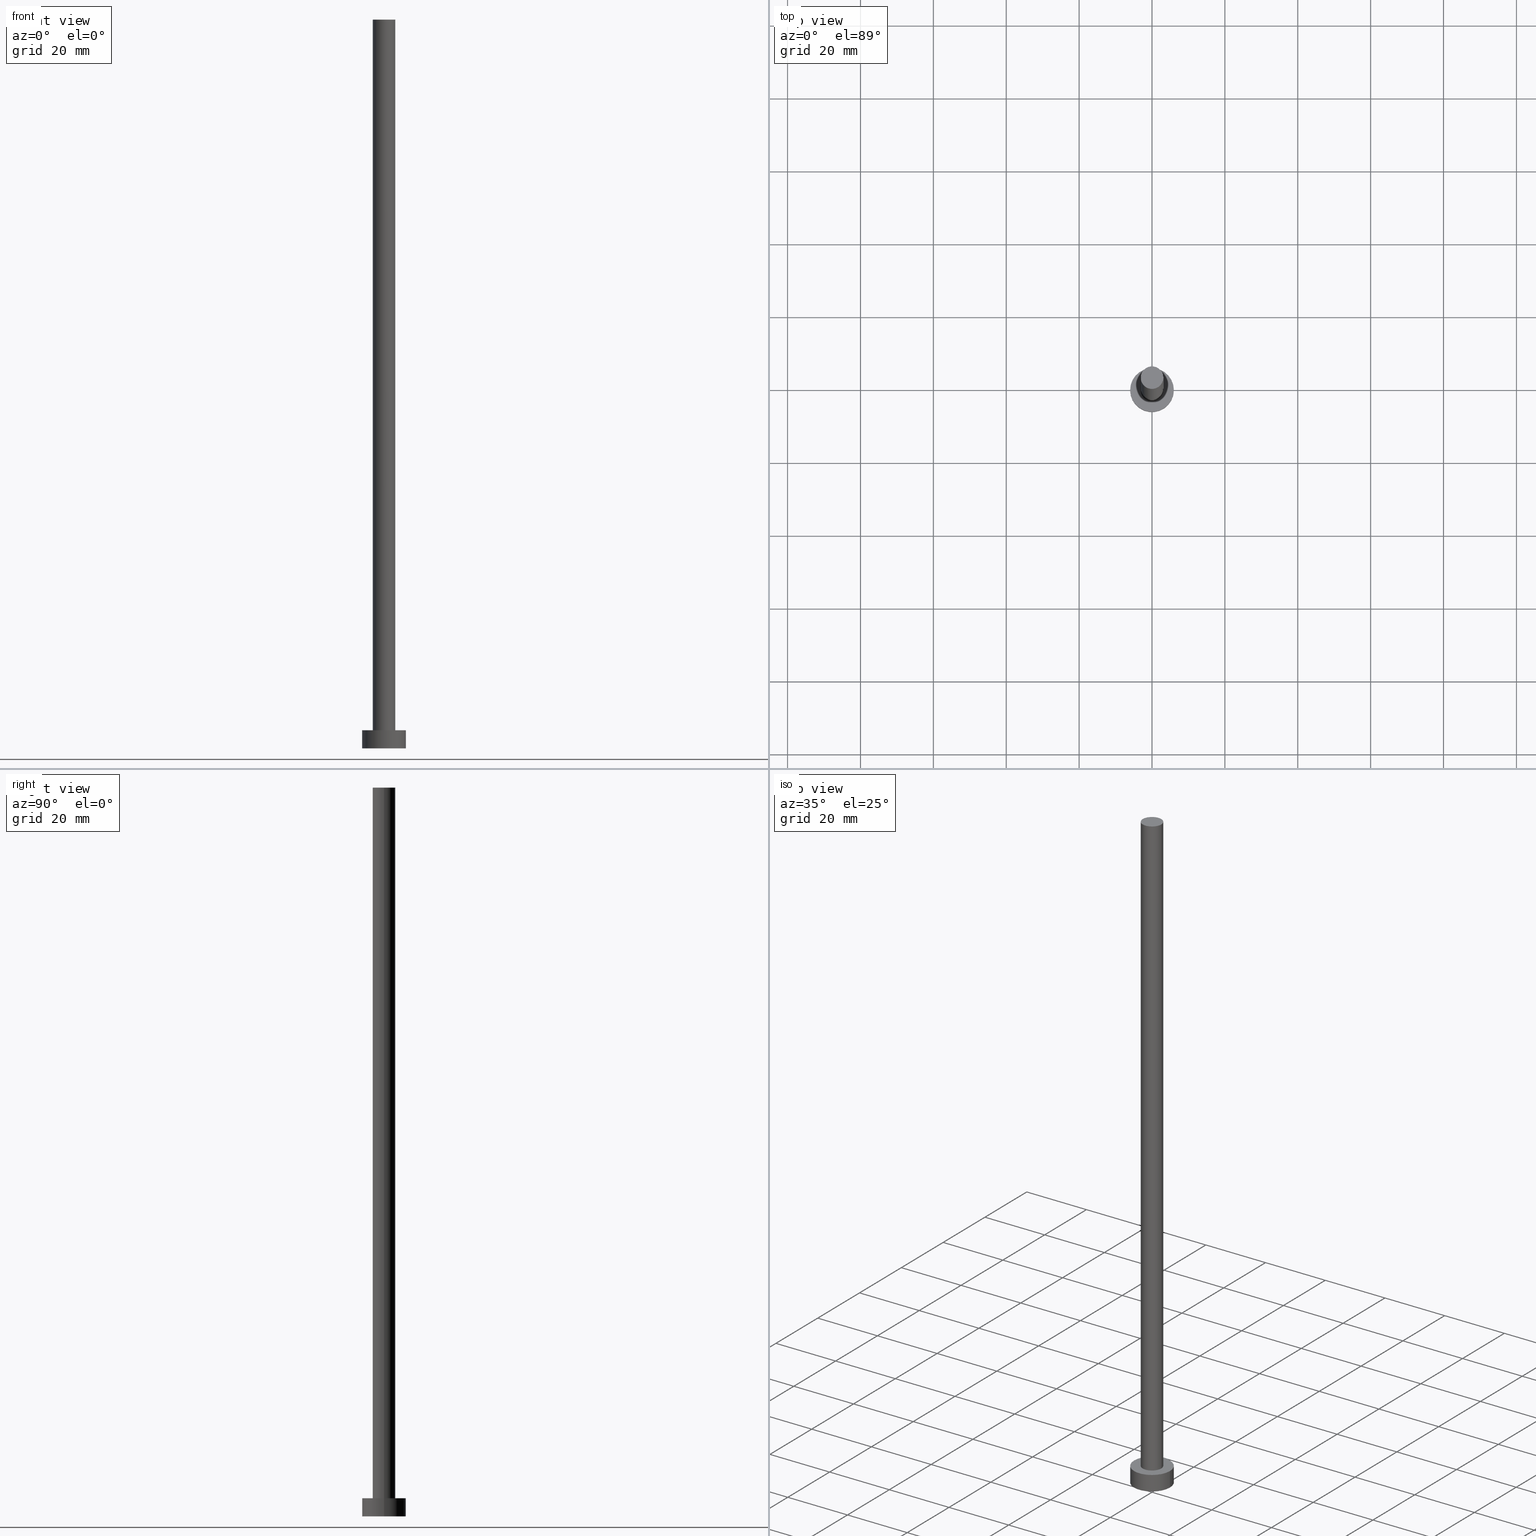
[diagram: canonical four-view strip — front | top / right | iso, engineering-drawing reading convention]
A machine part, canonical four-view strip (front | top / right | iso — engineering-drawing reading convention). The complete STEP part file that produces these views, byte-faithful:
ISO-10303-21;
HEADER;
FILE_DESCRIPTION (( 'STEP AP203' ),
    '1' );
FILE_NAME ('9dff.STEP',
    '2023-02-13T12:35:56',
    ( '' ),
    ( '' ),
    'SwSTEP 2.0',
    'SolidWorks 2019',
    '' );
FILE_SCHEMA (( 'CONFIG_CONTROL_DESIGN' ));
ENDSEC;

DATA;
#1 = ORIENTED_EDGE ( 'NONE', *, *, #210, .F. ) ;
#2 = AXIS2_PLACEMENT_3D ( 'NONE', #27, #22, #221 ) ;
#3 = CALENDAR_DATE ( 2023, 13, 2 ) ;
#4 = ADVANCED_FACE ( 'NONE', ( #180 ), #200, .F. ) ;
#5 = CARTESIAN_POINT ( 'NONE',  ( 0.000000000000000000, 0.000000000000000000, 0.000000000000000000 ) ) ;
#6 = PLANE ( 'NONE',  #235 ) ;
#7 = PRODUCT_DEFINITION_FORMATION_WITH_SPECIFIED_SOURCE ( 'LIBOVOLN�', '', #110, .NOT_KNOWN. ) ;
#8 = CC_DESIGN_PERSON_AND_ORGANIZATION_ASSIGNMENT ( #43, #39, ( #7 ) ) ;
#9 = DIRECTION ( 'NONE',  ( -1.000000000000000000, 0.000000000000000000, 0.000000000000000000 ) ) ;
#10 = SHAPE_DEFINITION_REPRESENTATION ( #72, #222 ) ;
#11 = DIRECTION ( 'NONE',  ( 1.000000000000000000, 0.000000000000000000, 0.000000000000000000 ) ) ;
#12 = AXIS2_PLACEMENT_3D ( 'NONE', #131, #108, #192 ) ;
#13 = LOCAL_TIME ( 13, 35, 56.00000000000000000, #36 ) ;
#14 = FACE_OUTER_BOUND ( 'NONE', #164, .T. ) ;
#15 = PERSON_AND_ORGANIZATION_ROLE ( 'design_owner' ) ;
#16 = DIRECTION ( 'NONE',  ( 1.000000000000000000, 0.000000000000000000, 0.000000000000000000 ) ) ;
#17 = ADVANCED_FACE ( 'NONE', ( #83, #66 ), #26, .T. ) ;
#18 =( LENGTH_UNIT ( ) NAMED_UNIT ( * ) SI_UNIT ( .MILLI., .METRE. ) );
#19 = ORIENTED_EDGE ( 'NONE', *, *, #176, .T. ) ;
#20 =( GEOMETRIC_REPRESENTATION_CONTEXT ( 3 ) GLOBAL_UNCERTAINTY_ASSIGNED_CONTEXT ( ( #132 ) ) GLOBAL_UNIT_ASSIGNED_CONTEXT ( ( #18, #75, #212 ) ) REPRESENTATION_CONTEXT ( 'NONE', 'WORKASPACE' ) );
#21 = ORIENTED_EDGE ( 'NONE', *, *, #255, .F. ) ;
#22 = DIRECTION ( 'NONE',  ( 0.000000000000000000, 0.000000000000000000, 1.000000000000000000 ) ) ;
#23 = ADVANCED_FACE ( 'NONE', ( #63 ), #186, .T. ) ;
#24 = CALENDAR_DATE ( 2023, 13, 2 ) ;
#25 = CARTESIAN_POINT ( 'NONE',  ( 3.100000000000000089, 3.796405077356794918E-16, 200.0000000000000000 ) ) ;
#26 = PLANE ( 'NONE',  #250 ) ;
#27 = CARTESIAN_POINT ( 'NONE',  ( 0.000000000000000000, 0.000000000000000000, 0.000000000000000000 ) ) ;
#28 = ADVANCED_FACE ( 'NONE', ( #206 ), #65, .T. ) ;
#29 = AXIS2_PLACEMENT_3D ( 'NONE', #229, #156, #35 ) ;
#30 = DIRECTION ( 'NONE',  ( 1.000000000000000000, 0.000000000000000000, 0.000000000000000000 ) ) ;
#31 = EDGE_LOOP ( 'NONE', ( #254, #40, #214, #1 ) ) ;
#32 = EDGE_CURVE ( 'NONE', #149, #56, #161, .T. ) ;
#33 = DIRECTION ( 'NONE',  ( -0.000000000000000000, -0.000000000000000000, -1.000000000000000000 ) ) ;
#34 = AXIS2_PLACEMENT_3D ( 'NONE', #84, #150, #107 ) ;
#35 = DIRECTION ( 'NONE',  ( 1.000000000000000000, 0.000000000000000000, 0.000000000000000000 ) ) ;
#36 = COORDINATED_UNIVERSAL_TIME_OFFSET ( 1, 0, .AHEAD. ) ;
#37 = VERTEX_POINT ( 'NONE', #67 ) ;
#38 = CC_DESIGN_DATE_AND_TIME_ASSIGNMENT ( #102, #69, ( #82 ) ) ;
#39 = PERSON_AND_ORGANIZATION_ROLE ( 'design_supplier' ) ;
#40 = ORIENTED_EDGE ( 'NONE', *, *, #255, .T. ) ;
#41 = CALENDAR_DATE ( 2023, 13, 2 ) ;
#42 = ADVANCED_FACE ( 'NONE', ( #169 ), #220, .T. ) ;
#43 = PERSON_AND_ORGANIZATION ( #79, #123 ) ;
#44 = CIRCLE ( 'NONE', #2, 6.000000000000000888 ) ;
#45 = COORDINATED_UNIVERSAL_TIME_OFFSET ( 1, 0, .AHEAD. ) ;
#46 = DIRECTION ( 'NONE',  ( 0.000000000000000000, 0.000000000000000000, 1.000000000000000000 ) ) ;
#47 = CARTESIAN_POINT ( 'NONE',  ( -3.100000000000000089, 0.000000000000000000, 5.000000000000000000 ) ) ;
#48 = CARTESIAN_POINT ( 'NONE',  ( 0.000000000000000000, 0.000000000000000000, 200.0000000000000000 ) ) ;
#49 = DIRECTION ( 'NONE',  ( -1.000000000000000000, 0.000000000000000000, 0.000000000000000000 ) ) ;
#50 = CYLINDRICAL_SURFACE ( 'NONE', #12, 6.000000000000000888 ) ;
#51 = AXIS2_PLACEMENT_3D ( 'NONE', #153, #207, #11 ) ;
#52 = VECTOR ( 'NONE', #33, 1000.000000000000000 ) ;
#53 = APPROVAL ( #145, 'NEUR�EN�' ) ;
#54 = CARTESIAN_POINT ( 'NONE',  ( -3.100000000000000089, 0.000000000000000000, 200.0000000000000000 ) ) ;
#55 = VERTEX_POINT ( 'NONE', #130 ) ;
#56 = VERTEX_POINT ( 'NONE', #47 ) ;
#57 = CLOSED_SHELL ( 'NONE', ( #42, #23, #81, #17, #4, #28, #92 ) ) ;
#58 = LOCAL_TIME ( 13, 35, 56.00000000000000000, #45 ) ;
#59 = CARTESIAN_POINT ( 'NONE',  ( 6.000000000000000888, 7.347880794884120722E-16, 5.000000000000000000 ) ) ;
#60 = ORIENTED_EDGE ( 'NONE', *, *, #32, .T. ) ;
#61 = PERSON_AND_ORGANIZATION ( #79, #123 ) ;
#62 = APPROVAL ( #106, 'NEUR�EN�' ) ;
#63 = FACE_OUTER_BOUND ( 'NONE', #31, .T. ) ;
#64 = AXIS2_PLACEMENT_3D ( 'NONE', #232, #93, #16 ) ;
#65 = CYLINDRICAL_SURFACE ( 'NONE', #190, 3.100000000000000089 ) ;
#66 = FACE_OUTER_BOUND ( 'NONE', #80, .T. ) ;
#67 = CARTESIAN_POINT ( 'NONE',  ( -6.000000000000000888, 0.000000000000000000, 5.000000000000000000 ) ) ;
#68 = PRODUCT_DEFINITION ( 'NEZN�M�', '', #7, #112 ) ;
#69 = DATE_TIME_ROLE ( 'classification_date' ) ;
#70 = DIRECTION ( 'NONE',  ( -0.000000000000000000, -0.000000000000000000, -1.000000000000000000 ) ) ;
#71 = CC_DESIGN_PERSON_AND_ORGANIZATION_ASSIGNMENT ( #158, #15, ( #110 ) ) ;
#72 = PRODUCT_DEFINITION_SHAPE ( 'NONE', 'NONE',  #68 ) ;
#73 = APPROVAL_ROLE ( '' ) ;
#74 = ORIENTED_EDGE ( 'NONE', *, *, #218, .T. ) ;
#75 =( NAMED_UNIT ( * ) PLANE_ANGLE_UNIT ( ) SI_UNIT ( $, .RADIAN. ) );
#76 = AXIS2_PLACEMENT_3D ( 'NONE', #154, #70, #189 ) ;
#77 = LOCAL_TIME ( 13, 35, 56.00000000000000000, #202 ) ;
#78 = PERSON_AND_ORGANIZATION_ROLE ( 'classification_officer' ) ;
#79 = PERSON ( 'NEUR�EN�', 'NEUR�EN�', 'NEUR�EN�', ('NEUR�EN�'), ('NEUR�EN�'), ('NEUR�EN�') ) ;
#80 = EDGE_LOOP ( 'NONE', ( #170, #125 ) ) ;
#81 = ADVANCED_FACE ( 'NONE', ( #174 ), #50, .T. ) ;
#82 = SECURITY_CLASSIFICATION ( '', '', #124 ) ;
#83 = FACE_BOUND ( 'NONE', #213, .T. ) ;
#84 = CARTESIAN_POINT ( 'NONE',  ( 0.000000000000000000, 0.000000000000000000, 5.000000000000000000 ) ) ;
#85 = CC_DESIGN_APPROVAL ( #53, ( #7 ) ) ;
#86 = DIRECTION ( 'NONE',  ( -0.000000000000000000, -0.000000000000000000, -1.000000000000000000 ) ) ;
#87 = DIRECTION ( 'NONE',  ( 1.000000000000000000, 0.000000000000000000, -0.000000000000000000 ) ) ;
#88 = DIRECTION ( 'NONE',  ( 0.000000000000000000, 0.000000000000000000, 1.000000000000000000 ) ) ;
#89 = AXIS2_PLACEMENT_3D ( 'NONE', #227, #126, #105 ) ;
#90 = CARTESIAN_POINT ( 'NONE',  ( 3.100000000000000089, 3.796405077356794918E-16, 200.0000000000000000 ) ) ;
#91 = LINE ( 'NONE', #59, #115 ) ;
#92 = ADVANCED_FACE ( 'NONE', ( #14 ), #6, .T. ) ;
#93 = DIRECTION ( 'NONE',  ( 0.000000000000000000, 0.000000000000000000, 1.000000000000000000 ) ) ;
#94 = EDGE_LOOP ( 'NONE', ( #233, #215 ) ) ;
#95 = PERSON_AND_ORGANIZATION ( #79, #123 ) ;
#96 = VERTEX_POINT ( 'NONE', #127 ) ;
#97 = DATE_AND_TIME ( #142, #13 ) ;
#98 = EDGE_LOOP ( 'NONE', ( #195, #179, #253, #120 ) ) ;
#99 = EDGE_CURVE ( 'NONE', #96, #37, #217, .T. ) ;
#100 = APPROVAL_ROLE ( '' ) ;
#101 = CARTESIAN_POINT ( 'NONE',  ( -3.100000000000000089, 0.000000000000000000, 200.0000000000000000 ) ) ;
#102 = DATE_AND_TIME ( #104, #225 ) ;
#103 = DIRECTION ( 'NONE',  ( 1.000000000000000000, 0.000000000000000000, 0.000000000000000000 ) ) ;
#104 = CALENDAR_DATE ( 2023, 13, 2 ) ;
#105 = DIRECTION ( 'NONE',  ( 1.000000000000000000, 0.000000000000000000, 0.000000000000000000 ) ) ;
#106 = APPROVAL_STATUS ( 'not_yet_approved' ) ;
#107 = DIRECTION ( 'NONE',  ( 1.000000000000000000, 0.000000000000000000, 0.000000000000000000 ) ) ;
#108 = DIRECTION ( 'NONE',  ( -0.000000000000000000, -0.000000000000000000, -1.000000000000000000 ) ) ;
#109 = AXIS2_PLACEMENT_3D ( 'NONE', #148, #46, #103 ) ;
#110 = PRODUCT ( '9dff', '9dff', '', ( #194 ) ) ;
#111 = DIRECTION ( 'NONE',  ( 0.000000000000000000, 0.000000000000000000, 1.000000000000000000 ) ) ;
#112 = DESIGN_CONTEXT ( 'detailed design', #248, 'design' ) ;
#113 = APPLICATION_PROTOCOL_DEFINITION ( 'international standard', 'config_control_design', 1994, #160 ) ;
#114 = ORIENTED_EDGE ( 'NONE', *, *, #234, .F. ) ;
#115 = VECTOR ( 'NONE', #117, 1000.000000000000000 ) ;
#116 = EDGE_CURVE ( 'NONE', #178, #149, #223, .T. ) ;
#117 = DIRECTION ( 'NONE',  ( -0.000000000000000000, -0.000000000000000000, -1.000000000000000000 ) ) ;
#118 = PERSON_AND_ORGANIZATION ( #79, #123 ) ;
#119 = ORIENTED_EDGE ( 'NONE', *, *, #210, .T. ) ;
#120 = ORIENTED_EDGE ( 'NONE', *, *, #144, .T. ) ;
#121 = APPROVAL_ROLE ( '' ) ;
#122 = AXIS2_PLACEMENT_3D ( 'NONE', #5, #181, #205 ) ;
#123 = ORGANIZATION ( 'NEUR�EN�', 'NEUR�EN�', '' ) ;
#124 = SECURITY_CLASSIFICATION_LEVEL ( 'unclassified' ) ;
#125 = ORIENTED_EDGE ( 'NONE', *, *, #99, .T. ) ;
#126 = DIRECTION ( 'NONE',  ( 0.000000000000000000, 0.000000000000000000, 1.000000000000000000 ) ) ;
#127 = CARTESIAN_POINT ( 'NONE',  ( 6.000000000000000888, 7.347880794884120722E-16, 5.000000000000000000 ) ) ;
#128 = EDGE_CURVE ( 'NONE', #136, #55, #44, .T. ) ;
#129 = LINE ( 'NONE', #226, #52 ) ;
#130 = CARTESIAN_POINT ( 'NONE',  ( -6.000000000000000888, 0.000000000000000000, 0.000000000000000000 ) ) ;
#131 = CARTESIAN_POINT ( 'NONE',  ( 0.000000000000000000, 0.000000000000000000, 5.000000000000000000 ) ) ;
#132 = UNCERTAINTY_MEASURE_WITH_UNIT (LENGTH_MEASURE( 1.000000000000000082E-05 ), #18, 'distance_accuracy_value', 'NONE');
#133 = PRODUCT_RELATED_PRODUCT_CATEGORY ( 'detail', '', ( #110 ) ) ;
#134 = ORIENTED_EDGE ( 'NONE', *, *, #144, .F. ) ;
#135 = CARTESIAN_POINT ( 'NONE',  ( 0.000000000000000000, 0.000000000000000000, 0.000000000000000000 ) ) ;
#136 = VERTEX_POINT ( 'NONE', #209 ) ;
#137 = AXIS2_PLACEMENT_3D ( 'NONE', #185, #251, #9 ) ;
#138 = CIRCLE ( 'NONE', #168, 6.000000000000000888 ) ;
#139 = EDGE_CURVE ( 'NONE', #242, #56, #171, .T. ) ;
#140 = PERSON_AND_ORGANIZATION ( #79, #123 ) ;
#141 = APPROVAL_PERSON_ORGANIZATION ( #219, #62, #100 ) ;
#142 = CALENDAR_DATE ( 2023, 13, 2 ) ;
#143 = PERSON_AND_ORGANIZATION ( #79, #123 ) ;
#144 = EDGE_CURVE ( 'NONE', #56, #149, #151, .T. ) ;
#145 = APPROVAL_STATUS ( 'not_yet_approved' ) ;
#146 = VECTOR ( 'NONE', #173, 1000.000000000000000 ) ;
#147 = CARTESIAN_POINT ( 'NONE',  ( 0.000000000000000000, 0.000000000000000000, 200.0000000000000000 ) ) ;
#148 = CARTESIAN_POINT ( 'NONE',  ( 0.000000000000000000, 0.000000000000000000, 5.000000000000000000 ) ) ;
#149 = VERTEX_POINT ( 'NONE', #249 ) ;
#150 = DIRECTION ( 'NONE',  ( 0.000000000000000000, 0.000000000000000000, 1.000000000000000000 ) ) ;
#151 = CIRCLE ( 'NONE', #34, 3.100000000000000089 ) ;
#152 = DATE_AND_TIME ( #24, #58 ) ;
#153 = CARTESIAN_POINT ( 'NONE',  ( 0.000000000000000000, 0.000000000000000000, 200.0000000000000000 ) ) ;
#154 = CARTESIAN_POINT ( 'NONE',  ( 0.000000000000000000, 0.000000000000000000, 200.0000000000000000 ) ) ;
#155 = APPROVAL_STATUS ( 'not_yet_approved' ) ;
#156 = DIRECTION ( 'NONE',  ( 0.000000000000000000, 0.000000000000000000, 1.000000000000000000 ) ) ;
#157 = CC_DESIGN_PERSON_AND_ORGANIZATION_ASSIGNMENT ( #95, #78, ( #82 ) ) ;
#158 = PERSON_AND_ORGANIZATION ( #79, #123 ) ;
#159 = EDGE_LOOP ( 'NONE', ( #21, #114, #119, #74 ) ) ;
#160 = APPLICATION_CONTEXT ( 'configuration controlled 3d designs of mechanical parts and assemblies' ) ;
#161 = CIRCLE ( 'NONE', #89, 3.100000000000000089 ) ;
#162 = CC_DESIGN_SECURITY_CLASSIFICATION ( #82, ( #7 ) ) ;
#163 = COORDINATED_UNIVERSAL_TIME_OFFSET ( 1, 0, .AHEAD. ) ;
#164 = EDGE_LOOP ( 'NONE', ( #246, #19 ) ) ;
#165 = COORDINATED_UNIVERSAL_TIME_OFFSET ( 1, 0, .AHEAD. ) ;
#166 = APPROVAL ( #155, 'NEUR�EN�' ) ;
#167 = APPROVAL_DATE_TIME ( #183, #53 ) ;
#168 = AXIS2_PLACEMENT_3D ( 'NONE', #135, #111, #196 ) ;
#169 = FACE_OUTER_BOUND ( 'NONE', #231, .T. ) ;
#170 = ORIENTED_EDGE ( 'NONE', *, *, #234, .T. ) ;
#171 = LINE ( 'NONE', #101, #146 ) ;
#172 = MANIFOLD_SOLID_BREP ( 'P�idat vysunut�m3', #57 ) ;
#173 = DIRECTION ( 'NONE',  ( -0.000000000000000000, -0.000000000000000000, -1.000000000000000000 ) ) ;
#174 = FACE_OUTER_BOUND ( 'NONE', #159, .T. ) ;
#175 = ORIENTED_EDGE ( 'NONE', *, *, #139, .F. ) ;
#176 = EDGE_CURVE ( 'NONE', #178, #242, #228, .T. ) ;
#177 = APPLICATION_PROTOCOL_DEFINITION ( 'international standard', 'config_control_design', 1994, #248 ) ;
#178 = VERTEX_POINT ( 'NONE', #25 ) ;
#179 = ORIENTED_EDGE ( 'NONE', *, *, #243, .F. ) ;
#180 = FACE_OUTER_BOUND ( 'NONE', #94, .T. ) ;
#181 = DIRECTION ( 'NONE',  ( 0.000000000000000000, 0.000000000000000000, 1.000000000000000000 ) ) ;
#182 = CC_DESIGN_DATE_AND_TIME_ASSIGNMENT ( #199, #201, ( #68 ) ) ;
#183 = DATE_AND_TIME ( #3, #77 ) ;
#184 = DIRECTION ( 'NONE',  ( 0.000000000000000000, 0.000000000000000000, 1.000000000000000000 ) ) ;
#185 = CARTESIAN_POINT ( 'NONE',  ( 0.000000000000000000, 0.000000000000000000, 5.000000000000000000 ) ) ;
#186 = CYLINDRICAL_SURFACE ( 'NONE', #137, 6.000000000000000888 ) ;
#187 = APPROVAL_DATE_TIME ( #152, #62 ) ;
#188 = CC_DESIGN_PERSON_AND_ORGANIZATION_ASSIGNMENT ( #61, #216, ( #7 ) ) ;
#189 = DIRECTION ( 'NONE',  ( -1.000000000000000000, 0.000000000000000000, 0.000000000000000000 ) ) ;
#190 = AXIS2_PLACEMENT_3D ( 'NONE', #147, #86, #49 ) ;
#191 = CIRCLE ( 'NONE', #64, 6.000000000000000888 ) ;
#192 = DIRECTION ( 'NONE',  ( -1.000000000000000000, 0.000000000000000000, 0.000000000000000000 ) ) ;
#193 = DIRECTION ( 'NONE',  ( 0.000000000000000000, 0.000000000000000000, 1.000000000000000000 ) ) ;
#194 = MECHANICAL_CONTEXT ( 'NONE', #160, 'mechanical' ) ;
#195 = ORIENTED_EDGE ( 'NONE', *, *, #116, .F. ) ;
#196 = DIRECTION ( 'NONE',  ( 1.000000000000000000, 0.000000000000000000, 0.000000000000000000 ) ) ;
#197 = ORIENTED_EDGE ( 'NONE', *, *, #32, .F. ) ;
#198 = APPROVAL_PERSON_ORGANIZATION ( #143, #53, #121 ) ;
#199 = DATE_AND_TIME ( #41, #240 ) ;
#200 = PLANE ( 'NONE',  #122 ) ;
#201 = DATE_TIME_ROLE ( 'creation_date' ) ;
#202 = COORDINATED_UNIVERSAL_TIME_OFFSET ( 1, 0, .AHEAD. ) ;
#203 = VECTOR ( 'NONE', #244, 1000.000000000000000 ) ;
#204 = APPROVAL_PERSON_ORGANIZATION ( #118, #166, #73 ) ;
#205 = DIRECTION ( 'NONE',  ( 1.000000000000000000, 0.000000000000000000, -0.000000000000000000 ) ) ;
#206 = FACE_OUTER_BOUND ( 'NONE', #98, .T. ) ;
#207 = DIRECTION ( 'NONE',  ( 0.000000000000000000, 0.000000000000000000, 1.000000000000000000 ) ) ;
#208 = CIRCLE ( 'NONE', #29, 3.100000000000000089 ) ;
#209 = CARTESIAN_POINT ( 'NONE',  ( 6.000000000000000888, 7.347880794884120722E-16, 0.000000000000000000 ) ) ;
#210 = EDGE_CURVE ( 'NONE', #37, #55, #129, .T. ) ;
#211 = CARTESIAN_POINT ( 'NONE',  ( 0.000000000000000000, 0.000000000000000000, 5.000000000000000000 ) ) ;
#212 =( NAMED_UNIT ( * ) SI_UNIT ( $, .STERADIAN. ) SOLID_ANGLE_UNIT ( ) );
#213 = EDGE_LOOP ( 'NONE', ( #134, #197 ) ) ;
#214 = ORIENTED_EDGE ( 'NONE', *, *, #128, .T. ) ;
#215 = ORIENTED_EDGE ( 'NONE', *, *, #128, .F. ) ;
#216 = PERSON_AND_ORGANIZATION_ROLE ( 'creator' ) ;
#217 = CIRCLE ( 'NONE', #109, 6.000000000000000888 ) ;
#218 = EDGE_CURVE ( 'NONE', #55, #136, #138, .T. ) ;
#219 = PERSON_AND_ORGANIZATION ( #79, #123 ) ;
#220 = CYLINDRICAL_SURFACE ( 'NONE', #76, 3.100000000000000089 ) ;
#221 = DIRECTION ( 'NONE',  ( 1.000000000000000000, 0.000000000000000000, 0.000000000000000000 ) ) ;
#222 = ADVANCED_BREP_SHAPE_REPRESENTATION ( '9dff', ( #172, #237 ), #20 ) ;
#223 = LINE ( 'NONE', #90, #203 ) ;
#224 = CC_DESIGN_APPROVAL ( #62, ( #82 ) ) ;
#225 = LOCAL_TIME ( 13, 35, 56.00000000000000000, #163 ) ;
#226 = CARTESIAN_POINT ( 'NONE',  ( -6.000000000000000888, 0.000000000000000000, 5.000000000000000000 ) ) ;
#227 = CARTESIAN_POINT ( 'NONE',  ( 0.000000000000000000, 0.000000000000000000, 5.000000000000000000 ) ) ;
#228 = CIRCLE ( 'NONE', #51, 3.100000000000000089 ) ;
#229 = CARTESIAN_POINT ( 'NONE',  ( 0.000000000000000000, 0.000000000000000000, 200.0000000000000000 ) ) ;
#230 = CC_DESIGN_APPROVAL ( #166, ( #68 ) ) ;
#231 = EDGE_LOOP ( 'NONE', ( #239, #252, #60, #175 ) ) ;
#232 = CARTESIAN_POINT ( 'NONE',  ( 0.000000000000000000, 0.000000000000000000, 5.000000000000000000 ) ) ;
#233 = ORIENTED_EDGE ( 'NONE', *, *, #218, .F. ) ;
#234 = EDGE_CURVE ( 'NONE', #37, #96, #191, .T. ) ;
#235 = AXIS2_PLACEMENT_3D ( 'NONE', #48, #184, #87 ) ;
#236 = CARTESIAN_POINT ( 'NONE',  ( 0.000000000000000000, 0.000000000000000000, 0.000000000000000000 ) ) ;
#237 = AXIS2_PLACEMENT_3D ( 'NONE', #236, #193, #30 ) ;
#238 = APPROVAL_DATE_TIME ( #97, #166 ) ;
#239 = ORIENTED_EDGE ( 'NONE', *, *, #176, .F. ) ;
#240 = LOCAL_TIME ( 13, 35, 56.00000000000000000, #165 ) ;
#241 = PERSON_AND_ORGANIZATION_ROLE ( 'creator' ) ;
#242 = VERTEX_POINT ( 'NONE', #54 ) ;
#243 = EDGE_CURVE ( 'NONE', #242, #178, #208, .T. ) ;
#244 = DIRECTION ( 'NONE',  ( -0.000000000000000000, -0.000000000000000000, -1.000000000000000000 ) ) ;
#245 = DIRECTION ( 'NONE',  ( 1.000000000000000000, 0.000000000000000000, -0.000000000000000000 ) ) ;
#246 = ORIENTED_EDGE ( 'NONE', *, *, #243, .T. ) ;
#247 = CC_DESIGN_PERSON_AND_ORGANIZATION_ASSIGNMENT ( #140, #241, ( #68 ) ) ;
#248 = APPLICATION_CONTEXT ( 'configuration controlled 3d designs of mechanical parts and assemblies' ) ;
#249 = CARTESIAN_POINT ( 'NONE',  ( 3.100000000000000089, 3.796405077356794918E-16, 5.000000000000000000 ) ) ;
#250 = AXIS2_PLACEMENT_3D ( 'NONE', #211, #88, #245 ) ;
#251 = DIRECTION ( 'NONE',  ( -0.000000000000000000, -0.000000000000000000, -1.000000000000000000 ) ) ;
#252 = ORIENTED_EDGE ( 'NONE', *, *, #116, .T. ) ;
#253 = ORIENTED_EDGE ( 'NONE', *, *, #139, .T. ) ;
#254 = ORIENTED_EDGE ( 'NONE', *, *, #99, .F. ) ;
#255 = EDGE_CURVE ( 'NONE', #96, #136, #91, .T. ) ;
ENDSEC;
END-ISO-10303-21;
